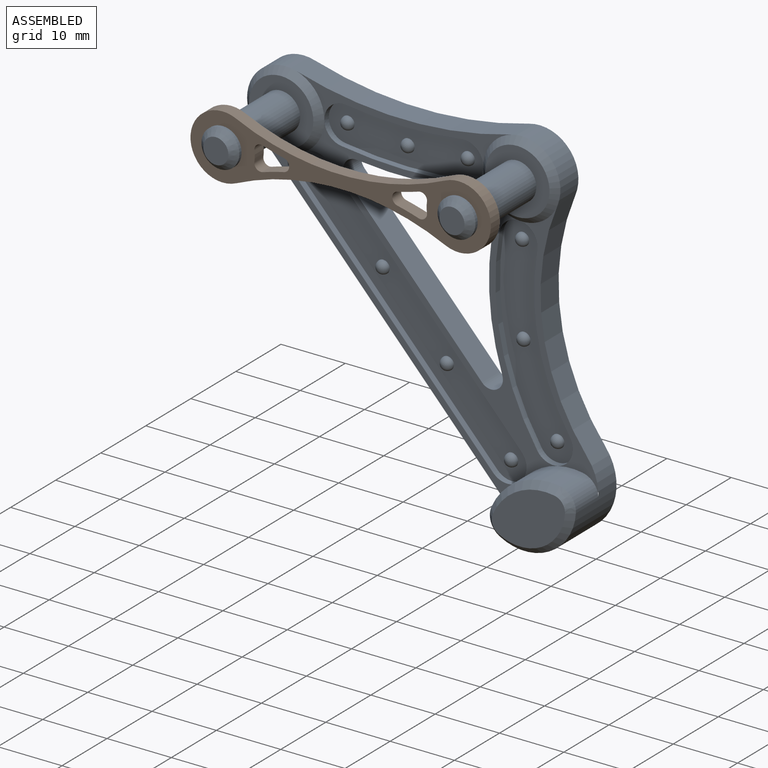
[diagram: assembled view]
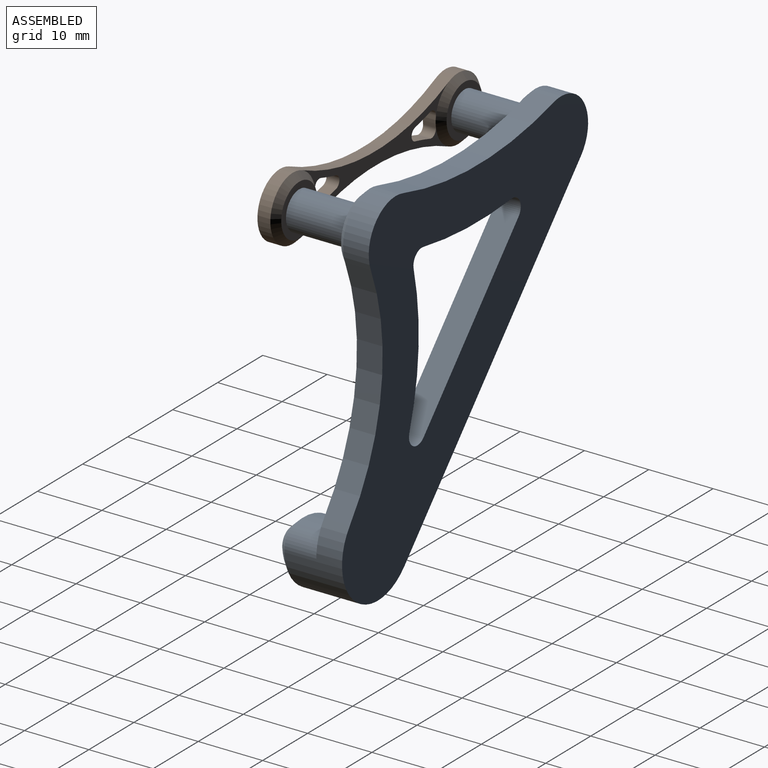
[diagram: assembled view, second angle]
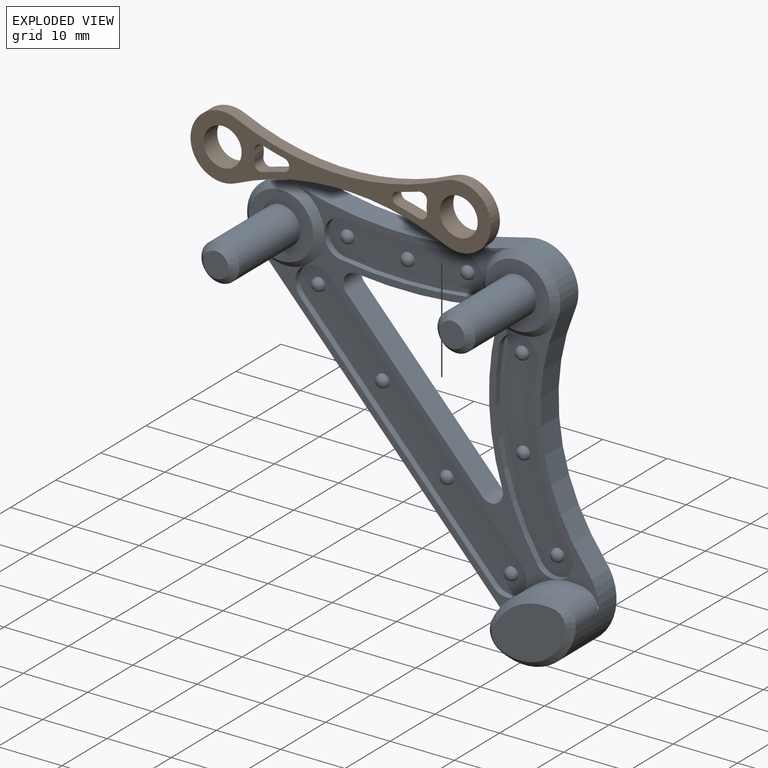
[diagram: exploded view]
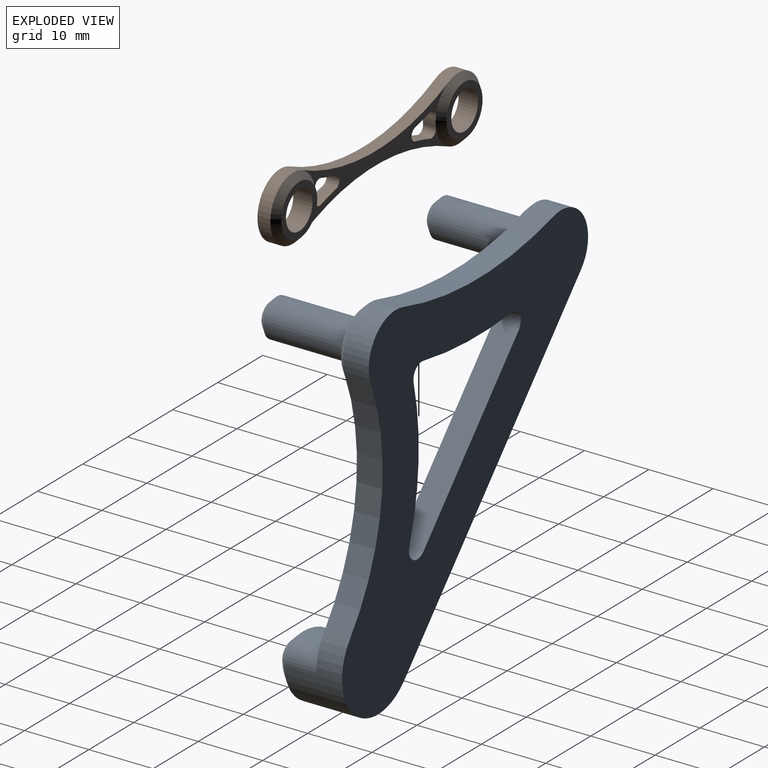
[diagram: exploded view, second angle]
ASSEMBLY  parts=2 mates=3
PART A: 61 faces, bbox 54.6x19.5x55.4 mm
  f0: plane 33.37x5.71mm, normal (0,-1,0), area 38.7mm2, adj f6,f37,f39,f40,f46,f50
  f1: plane 42.37x39.32mm, normal (0,-1,0), area 143.6mm2, adj f17,f19,f20,f21,f22,f23,f24,f27
  f2: plane 39.6x12.29mm, normal (0,-1,0), area 48.7mm2, adj f9,f10,f17,f25,f27,f29,f30,f50
  f3: plane 44.25x41.22mm, normal (0,-1,0), area 64.9mm2, adj f8,f9,f17,f26,f32,f33,f34,f46
  f4: plane 55.34x54.63mm, normal (0,1,0), area 1261.6mm2, adj f5,f6,f7,f8,f9,f10,f19,f20
  f5: cylinder r=6mm len=8.32mm, axis (0,1,0), area 54mm2, adj f4,f6,f10,f50
  f6: cylinder r=60mm len=33.36mm, axis (0,1,0), area 135.2mm2, adj f0,f4,f5,f7
  f7: cylinder r=6mm len=10.06mm, axis (0,1,0), area 62.3mm2, adj f4,f6,f8,f47
  f8: plane 42.7x39.23mm, normal (-0.74,0,-0.68), area 232mm2, adj f3,f4,f7,f9
  f9: cylinder r=7.96mm len=13.81mm, axis (0,1,0), area 177.9mm2, adj f2,f3,f4,f8,f10,f25,f26,f42
  f10: cylinder r=33.9mm len=34.13mm, axis (0,1,0), area 144.5mm2, adj f2,f4,f5,f9
  f11: plane 10x10mm, normal (0,-1,0), area 51.2mm2, adj f13,f50
  f12: plane 10.07x10.06mm, normal (0,-1,0), area 51.2mm2, adj f15,f46,f47
  f13: cylinder r=2.95mm len=13.5mm, axis (0,1,0), area 250.2mm2, adj f11,f48
  f14: plane 3.9x3.9mm, normal (0,-1,0), area 11.9mm2, adj f48
  f15: cylinder r=2.95mm len=13.5mm, axis (0,1,0), area 250.2mm2, adj f12,f49
  f16: plane 3.9x3.9mm, normal (0,-1,0), area 11.9mm2, adj f49
  f17: cylinder r=9.77mm len=10.65mm, axis (0,1,0), area 65.3mm2, adj f1,f2,f3,f25,f26,f45
  f18: plane 11.38x8.72mm, normal (0,-1,0), area 72.7mm2, adj f42,f43,f44,f45
  f19: cylinder r=68mm len=19.56mm, axis (0,1,0), area 78.6mm2, adj f1,f4,f20,f24
  f20: cylinder r=1.86mm len=4mm, axis (0,1,0), area 18.1mm2, adj f1,f4,f19,f21
  f21: plane 22.95x21.09mm, normal (0.74,0,0.68), area 124.7mm2, adj f1,f4,f20,f22
  f22: cylinder r=1.86mm len=4mm, axis (0,1,0), area 20.2mm2, adj f1,f4,f21,f23
  f23: cylinder r=41.9mm len=22.68mm, axis (0,1,0), area 91.9mm2, adj f1,f4,f22,f24
  f24: cylinder r=1.86mm len=4mm, axis (0,1,0), area 14.8mm2, adj f1,f4,f19,f23
  f25: cylinder r=3mm len=5mm, axis (0,1,0), area 22mm2, adj f2,f9,f17,f43
  f26: cylinder r=3mm len=5mm, axis (0,1,0), area 22mm2, adj f3,f9,f17,f44
  f27: cylinder r=3mm len=5.96mm, axis (0,-1,0), area 9.4mm2, adj f1,f2,f28,f30,f31
  f28: cylinder r=40.9mm len=29.08mm, axis (0,-1,0), area 30.4mm2, adj f1,f27,f29,f31
  f29: cylinder r=3mm len=5.52mm, axis (0,-1,0), area 9.4mm2, adj f1,f2,f28,f30,f31
  f30: cylinder r=34.9mm len=24.81mm, axis (0,-1,0), area 25.9mm2, adj f2,f27,f29,f31
  f31: plane 32.94x12.03mm, normal (0,-1,0), area 187.7mm2, adj f27,f28,f29,f30,f55,f56,f57
  f32: cylinder r=3mm len=5.21mm, axis (0,-1,0), area 9.4mm2, adj f1,f3,f33,f35,f36
  f33: plane 32.63x29.98mm, normal (0.74,0,0.68), area 44.3mm2, adj f3,f32,f34,f36
  f34: cylinder r=3mm len=5.21mm, axis (0,-1,0), area 9.4mm2, adj f1,f3,f33,f35,f36
  f35: plane 32.63x29.98mm, normal (-0.74,0,-0.68), area 44.3mm2, adj f1,f32,f34,f36
  f36: plane 38.63x35.98mm, normal (0,-1,0), area 281.6mm2, adj f32,f33,f34,f35,f51,f52,f53,f54
  f37: cylinder r=3mm len=5.97mm, axis (0,-1,0), area 9.4mm2, adj f0,f1,f38,f40,f41,f46
  f38: cylinder r=67mm len=19.58mm, axis (0,-1,0), area 19.6mm2, adj f1,f37,f39,f41
  f39: cylinder r=3mm len=5.97mm, axis (0,-1,0), area 9.4mm2, adj f0,f1,f38,f40,f41
  f40: cylinder r=61mm len=17.82mm, axis (0,-1,0), area 17.9mm2, adj f0,f37,f39,f41
  f41: plane 24.7x6.69mm, normal (0,-1,0), area 131.5mm2, adj f37,f38,f39,f40,f58,f59,f60
  f42: cone r=6.96mm half-angle=45deg, axis (0,1,0), area 21.3mm2, adj f9,f18,f43,f44
  f43: cone r=2mm half-angle=45deg, axis (0,1,0), area 5.2mm2, adj f18,f25,f42,f45
  f44: cone r=2mm half-angle=45deg, axis (0,1,0), area 5.2mm2, adj f18,f26,f42,f45
  f45: cone r=8.77mm half-angle=45deg, axis (0,1,0), area 17.5mm2, adj f17,f18,f43,f44
  f46: bspline ~11.76x10.42mm, area 28.6mm2, adj f0,f1,f3,f12,f37,f47
  f47: cone r=5mm half-angle=45deg, axis (0,1,0), area 20.2mm2, adj f7,f12,f46
  f48: cone r=1.95mm half-angle=45deg, axis (0,1,0), area 21.8mm2, adj f13,f14
  f49: cone r=1.95mm half-angle=45deg, axis (0,1,0), area 21.8mm2, adj f15,f16
  f50: cone r=6mm half-angle=45deg, axis (0,1,0), area 48.9mm2, adj f0,f1,f2,f5,f11
  f51: sphere r=1mm, area 6.3mm2, adj f36
  f52: sphere r=1mm, area 6.3mm2, adj f36
  f53: sphere r=1mm, area 6.3mm2, adj f36
  f54: sphere r=1mm, area 6.3mm2, adj f36
  f55: sphere r=1mm, area 6.3mm2, adj f31
  f56: sphere r=1mm, area 6.3mm2, adj f31
  f57: sphere r=1mm, area 6.3mm2, adj f31
  f58: sphere r=1mm, area 6.3mm2, adj f41
  f59: sphere r=1mm, area 6.3mm2, adj f41
  f60: sphere r=1mm, area 6.3mm2, adj f41
PART B: 25 faces, bbox 46.7x3x10 mm
  f0: plane 32.55x9.1mm, normal (0,1,0), area 72.5mm2, adj f1,f3,f10,f12,f13,f14,f15,f16
  f1: cylinder r=39.09mm len=32.54mm, axis (0,1,0), area 67.1mm2, adj f0,f2,f5,f7
  f2: cylinder r=5mm len=10mm, axis (0,1,0), area 40mm2, adj f1,f3,f7,f12
  f3: cylinder r=39.09mm len=32.54mm, axis (0,1,0), area 67.1mm2, adj f0,f2,f5,f7
  f4: cylinder r=2.95mm len=5.9mm, axis (0,1,0), area 55.6mm2, adj f7,f9
  f5: cylinder r=5mm len=10mm, axis (0,1,0), area 40mm2, adj f1,f3,f7,f11
  f6: cylinder r=2.95mm len=5.9mm, axis (0,1,0), area 55.6mm2, adj f7,f8
  f7: plane 46.7x10mm, normal (0,-1,0), area 174.9mm2, adj f1,f2,f3,f4,f5,f6,f13,f14
  f8: plane 8x8mm, normal (0,1,0), area 22.9mm2, adj f6,f12
  f9: plane 8.01x8.01mm, normal (0,1,0), area 22.9mm2, adj f4,f10,f11
  f10: bspline ~9.09x3.33mm, area 14.5mm2, adj f0,f9,f11,f24
  f11: cone r=4mm half-angle=45deg, axis (0,-1,0), area 25.5mm2, adj f5,f9,f10
  f12: cone r=5mm half-angle=45deg, axis (0,-1,0), area 40mm2, adj f0,f2,f8,f18
  f13: cylinder r=40.09mm len=3.33mm, axis (0,-1,0), area 6.9mm2, adj f0,f7,f14,f17
  f14: cylinder r=1mm len=2mm, axis (0,-1,0), area 5.4mm2, adj f0,f7,f13,f15
  f15: cylinder r=40.09mm len=3.33mm, axis (0,-1,0), area 6.9mm2, adj f0,f7,f14,f16
  f16: cylinder r=1mm len=2mm, axis (0,-1,0), area 4.1mm2, adj f0,f7,f15,f18
  f17: cylinder r=1mm len=2mm, axis (0,-1,0), area 4.1mm2, adj f0,f7,f13,f18
  f18: cylinder r=5mm len=2mm, axis (0,-1,0), area 3.1mm2, adj f7,f12,f16,f17
  f19: cylinder r=1mm len=2mm, axis (0,-1,0), area 5.4mm2, adj f0,f7,f20,f23
  f20: cylinder r=40.09mm len=3.33mm, axis (0,-1,0), area 6.9mm2, adj f0,f7,f19,f21
  f21: cylinder r=1mm len=2mm, axis (0,-1,0), area 4.1mm2, adj f0,f7,f20,f24
  f22: cylinder r=1mm len=2mm, axis (0,-1,0), area 4.1mm2, adj f0,f7,f23,f24
  f23: cylinder r=40.09mm len=3.33mm, axis (0,-1,0), area 6.9mm2, adj f0,f7,f19,f22
  f24: cylinder r=5mm len=2mm, axis (0,-1,0), area 3.1mm2, adj f7,f10,f21,f22
PLACE A t=(-11.63,-6.44,-11.21)mm fixed
PLACE B t=(-11.63,-21.44,-11.21)mm
MATE cylindrical B.f4 <-> A.f13  axis (0,1,0) through (-11.63,-22.44,-11.21)mm
MATE cylindrical B.f6 <-> A.f15  axis (0,1,0) through (-48.33,-22.44,-11.21)mm
MATE planar A.f5 <-> B.f24  axis (0,-1,0) through (-11.63,-9.44,-11.21)mm
